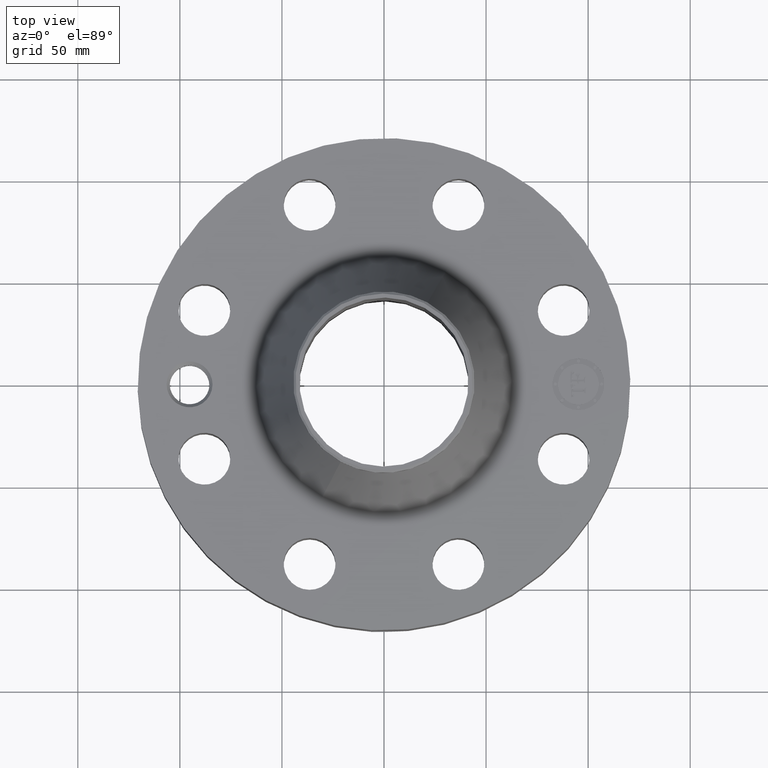
[diagram: clean part render]
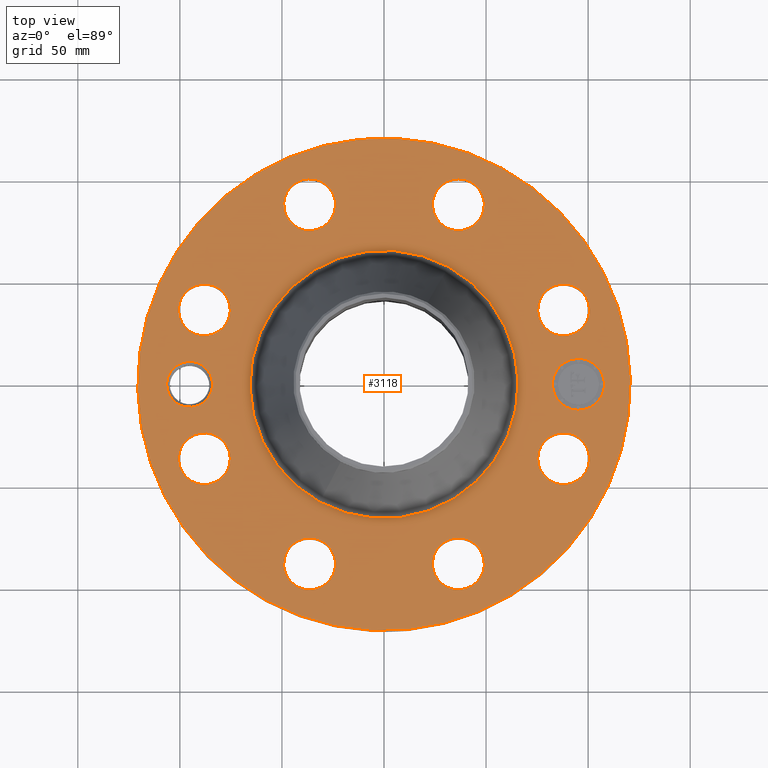
[diagram: same view with one face highlighted and labeled with its STEP entity id]
A machine part, top view. The second image highlights one B-rep face of the part: STEP entity #3118.
In plain terms, the highlighted planar face has unit normal (0, 0, -1).
Its self-contained STEP definition (entity closure, byte-faithful):
#2190=AXIS2_PLACEMENT_3D('Circle Axis2P3D',#2188,#2189,$) ;
#2216=AXIS2_PLACEMENT_3D('Circle Axis2P3D',#2214,#2215,$) ;
#2914=AXIS2_PLACEMENT_3D('Plane Axis2P3D',#2911,#2912,#2913) ;
#2918=AXIS2_PLACEMENT_3D('Circle Axis2P3D',#2916,#2917,$) ;
#2927=AXIS2_PLACEMENT_3D('Circle Axis2P3D',#2925,#2926,$) ;
#2936=AXIS2_PLACEMENT_3D('Circle Axis2P3D',#2934,#2935,$) ;
#2945=AXIS2_PLACEMENT_3D('Circle Axis2P3D',#2943,#2944,$) ;
#2954=AXIS2_PLACEMENT_3D('Circle Axis2P3D',#2952,#2953,$) ;
#2963=AXIS2_PLACEMENT_3D('Circle Axis2P3D',#2961,#2962,$) ;
#2976=AXIS2_PLACEMENT_3D('Circle Axis2P3D',#2974,#2975,$) ;
#2985=AXIS2_PLACEMENT_3D('Circle Axis2P3D',#2983,#2984,$) ;
#2994=AXIS2_PLACEMENT_3D('Circle Axis2P3D',#2992,#2993,$) ;
#3003=AXIS2_PLACEMENT_3D('Circle Axis2P3D',#3001,#3002,$) ;
#3012=AXIS2_PLACEMENT_3D('Circle Axis2P3D',#3010,#3011,$) ;
#3021=AXIS2_PLACEMENT_3D('Circle Axis2P3D',#3019,#3020,$) ;
#3030=AXIS2_PLACEMENT_3D('Circle Axis2P3D',#3028,#3029,$) ;
#3039=AXIS2_PLACEMENT_3D('Circle Axis2P3D',#3037,#3038,$) ;
#3048=AXIS2_PLACEMENT_3D('Circle Axis2P3D',#3046,#3047,$) ;
#3057=AXIS2_PLACEMENT_3D('Circle Axis2P3D',#3055,#3056,$) ;
#3066=AXIS2_PLACEMENT_3D('Circle Axis2P3D',#3064,#3065,$) ;
#3075=AXIS2_PLACEMENT_3D('Circle Axis2P3D',#3073,#3074,$) ;
#3084=AXIS2_PLACEMENT_3D('Circle Axis2P3D',#3082,#3083,$) ;
#3093=AXIS2_PLACEMENT_3D('Circle Axis2P3D',#3091,#3092,$) ;
#3102=AXIS2_PLACEMENT_3D('Circle Axis2P3D',#3100,#3101,$) ;
#3111=AXIS2_PLACEMENT_3D('Circle Axis2P3D',#3109,#3110,$) ;
#2188=CARTESIAN_POINT('Axis2P3D Location',(0.,0.,1.81200000001)) ;
#2192=CARTESIAN_POINT('Vertex',(-1.23992502813,-2.26966753984,1.81200000001)) ;
#2194=CARTESIAN_POINT('Vertex',(1.23992502813,2.26966753984,1.81200000001)) ;
#2214=CARTESIAN_POINT('Axis2P3D Location',(0.,0.,1.81200000001)) ;
#2911=CARTESIAN_POINT('Axis2P3D Location',(0.,4.75000000002,1.81200000001)) ;
#2916=CARTESIAN_POINT('Axis2P3D Location',(0.,0.,1.81200000001)) ;
#2920=CARTESIAN_POINT('Vertex',(2.27727130838,4.168517169,1.81200000001)) ;
#2922=CARTESIAN_POINT('Vertex',(-2.27727130838,-4.168517169,1.81200000001)) ;
#2925=CARTESIAN_POINT('Axis2P3D Location',(0.,0.,1.81200000001)) ;
#2934=CARTESIAN_POINT('Axis2P3D Location',(-3.75000000001,5.59482469102E-016,1.81200000001)) ;
#2938=CARTESIAN_POINT('Vertex',(-4.13859355842,0.212289628495,1.81200000001)) ;
#2940=CARTESIAN_POINT('Vertex',(-3.36140644161,-0.212289628495,1.81200000001)) ;
#2943=CARTESIAN_POINT('Axis2P3D Location',(-3.75000000001,5.59482469102E-016,1.81200000001)) ;
#2952=CARTESIAN_POINT('Axis2P3D Location',(3.46454824693,-1.43506287137,1.81200000001)) ;
#2956=CARTESIAN_POINT('Vertex',(3.02575696598,-1.19535010207,1.81200000001)) ;
#2958=CARTESIAN_POINT('Vertex',(3.90333952788,-1.67477564068,1.81200000001)) ;
#2961=CARTESIAN_POINT('Axis2P3D Location',(3.46454824693,-1.43506287137,1.81200000001)) ;
#2974=CARTESIAN_POINT('Axis2P3D Location',(1.43506287137,-3.46454824693,1.81200000001)) ;
#2978=CARTESIAN_POINT('Vertex',(1.57583263695,-3.94432306193,1.81200000001)) ;
#2980=CARTESIAN_POINT('Vertex',(1.2942931058,-2.98477343194,1.81200000001)) ;
#2983=CARTESIAN_POINT('Axis2P3D Location',(1.43506287137,-3.46454824693,1.81200000001)) ;
#2992=CARTESIAN_POINT('Axis2P3D Location',(-1.43506287137,-3.46454824693,1.81200000001)) ;
#2996=CARTESIAN_POINT('Vertex',(-1.67477564068,-3.90333952788,1.81200000001)) ;
#2998=CARTESIAN_POINT('Vertex',(-1.19535010207,-3.02575696598,1.81200000001)) ;
#3001=CARTESIAN_POINT('Axis2P3D Location',(-1.43506287137,-3.46454824693,1.81200000001)) ;
#3010=CARTESIAN_POINT('Axis2P3D Location',(-3.46454824693,-1.43506287137,1.81200000001)) ;
#3014=CARTESIAN_POINT('Vertex',(-3.94432306193,-1.57583263695,1.81200000001)) ;
#3016=CARTESIAN_POINT('Vertex',(-2.98477343194,-1.2942931058,1.81200000001)) ;
#3019=CARTESIAN_POINT('Axis2P3D Location',(-3.46454824693,-1.43506287137,1.81200000001)) ;
#3028=CARTESIAN_POINT('Axis2P3D Location',(-3.46454824693,1.43506287137,1.81200000001)) ;
#3032=CARTESIAN_POINT('Vertex',(-3.90333952788,1.67477564068,1.81200000001)) ;
#3034=CARTESIAN_POINT('Vertex',(-3.02575696598,1.19535010207,1.81200000001)) ;
#3037=CARTESIAN_POINT('Axis2P3D Location',(-3.46454824693,1.43506287137,1.81200000001)) ;
#3046=CARTESIAN_POINT('Axis2P3D Location',(-1.43506287137,3.46454824693,1.81200000001)) ;
#3050=CARTESIAN_POINT('Vertex',(-1.57583263695,3.94432306193,1.81200000001)) ;
#3052=CARTESIAN_POINT('Vertex',(-1.2942931058,2.98477343194,1.81200000001)) ;
#3055=CARTESIAN_POINT('Axis2P3D Location',(-1.43506287137,3.46454824693,1.81200000001)) ;
#3064=CARTESIAN_POINT('Axis2P3D Location',(1.43506287137,3.46454824693,1.81200000001)) ;
#3068=CARTESIAN_POINT('Vertex',(1.67477564068,3.90333952788,1.81200000001)) ;
#3070=CARTESIAN_POINT('Vertex',(1.19535010207,3.02575696598,1.81200000001)) ;
#3073=CARTESIAN_POINT('Axis2P3D Location',(1.43506287137,3.46454824693,1.81200000001)) ;
#3082=CARTESIAN_POINT('Axis2P3D Location',(3.46454824693,1.43506287137,1.81200000001)) ;
#3086=CARTESIAN_POINT('Vertex',(3.94432306193,1.57583263695,1.81200000001)) ;
#3088=CARTESIAN_POINT('Vertex',(2.98477343194,1.2942931058,1.81200000001)) ;
#3091=CARTESIAN_POINT('Axis2P3D Location',(3.46454824693,1.43506287137,1.81200000001)) ;
#3100=CARTESIAN_POINT('Axis2P3D Location',(3.75000000002,-9.51120197474E-015,1.81200000001)) ;
#3104=CARTESIAN_POINT('Vertex',(3.75000000001,0.499999995002,1.81200000001)) ;
#3106=CARTESIAN_POINT('Vertex',(3.75000000002,-0.499999995002,1.81200000001)) ;
#3109=CARTESIAN_POINT('Axis2P3D Location',(3.75000000002,-1.00706844438E-014,1.81200000001)) ;
#2189=DIRECTION('Axis2P3D Direction',(0.,0.,-0.0393700787402)) ;
#2215=DIRECTION('Axis2P3D Direction',(0.,0.,-0.0393700787402)) ;
#2912=DIRECTION('Axis2P3D Direction',(0.,0.,-0.0393700787402)) ;
#2913=DIRECTION('Axis2P3D XDirection',(0.0393700787402,0.,0.)) ;
#2917=DIRECTION('Axis2P3D Direction',(0.,0.,-0.0393700787402)) ;
#2926=DIRECTION('Axis2P3D Direction',(0.,0.,-0.0393700787402)) ;
#2935=DIRECTION('Axis2P3D Direction',(0.,0.,-0.0393700787402)) ;
#2944=DIRECTION('Axis2P3D Direction',(0.,0.,-0.0393700787402)) ;
#2953=DIRECTION('Axis2P3D Direction',(0.,0.,-0.0393700787402)) ;
#2962=DIRECTION('Axis2P3D Direction',(0.,0.,-0.0393700787402)) ;
#2975=DIRECTION('Axis2P3D Direction',(0.,0.,-0.0393700787402)) ;
#2984=DIRECTION('Axis2P3D Direction',(0.,0.,-0.0393700787402)) ;
#2993=DIRECTION('Axis2P3D Direction',(0.,0.,-0.0393700787402)) ;
#3002=DIRECTION('Axis2P3D Direction',(0.,0.,-0.0393700787402)) ;
#3011=DIRECTION('Axis2P3D Direction',(0.,0.,-0.0393700787402)) ;
#3020=DIRECTION('Axis2P3D Direction',(0.,0.,-0.0393700787402)) ;
#3029=DIRECTION('Axis2P3D Direction',(0.,0.,-0.0393700787402)) ;
#3038=DIRECTION('Axis2P3D Direction',(0.,0.,-0.0393700787402)) ;
#3047=DIRECTION('Axis2P3D Direction',(0.,0.,-0.0393700787402)) ;
#3056=DIRECTION('Axis2P3D Direction',(0.,0.,-0.0393700787402)) ;
#3065=DIRECTION('Axis2P3D Direction',(0.,0.,-0.0393700787402)) ;
#3074=DIRECTION('Axis2P3D Direction',(0.,0.,-0.0393700787402)) ;
#3083=DIRECTION('Axis2P3D Direction',(0.,0.,-0.0393700787402)) ;
#3092=DIRECTION('Axis2P3D Direction',(0.,0.,-0.0393700787402)) ;
#3101=DIRECTION('Axis2P3D Direction',(0.,0.,-0.0393700787402)) ;
#3110=DIRECTION('Axis2P3D Direction',(0.,0.,-0.0393700787402)) ;
#2931=ORIENTED_EDGE('',*,*,#2924,.F.) ;
#2932=ORIENTED_EDGE('',*,*,#2929,.F.) ;
#2949=ORIENTED_EDGE('',*,*,#2942,.T.) ;
#2950=ORIENTED_EDGE('',*,*,#2947,.T.) ;
#2967=ORIENTED_EDGE('',*,*,#2960,.T.) ;
#2968=ORIENTED_EDGE('',*,*,#2965,.T.) ;
#2971=ORIENTED_EDGE('',*,*,#2196,.T.) ;
#2972=ORIENTED_EDGE('',*,*,#2218,.T.) ;
#2989=ORIENTED_EDGE('',*,*,#2982,.T.) ;
#2990=ORIENTED_EDGE('',*,*,#2987,.T.) ;
#3007=ORIENTED_EDGE('',*,*,#3000,.T.) ;
#3008=ORIENTED_EDGE('',*,*,#3005,.T.) ;
#3025=ORIENTED_EDGE('',*,*,#3018,.T.) ;
#3026=ORIENTED_EDGE('',*,*,#3023,.T.) ;
#3043=ORIENTED_EDGE('',*,*,#3036,.T.) ;
#3044=ORIENTED_EDGE('',*,*,#3041,.T.) ;
#3061=ORIENTED_EDGE('',*,*,#3054,.T.) ;
#3062=ORIENTED_EDGE('',*,*,#3059,.T.) ;
#3079=ORIENTED_EDGE('',*,*,#3072,.T.) ;
#3080=ORIENTED_EDGE('',*,*,#3077,.T.) ;
#3097=ORIENTED_EDGE('',*,*,#3090,.T.) ;
#3098=ORIENTED_EDGE('',*,*,#3095,.T.) ;
#3115=ORIENTED_EDGE('',*,*,#3108,.T.) ;
#3116=ORIENTED_EDGE('',*,*,#3113,.T.) ;
#2951=FACE_BOUND('',#2948,.T.) ;
#2969=FACE_BOUND('',#2966,.T.) ;
#2973=FACE_BOUND('',#2970,.T.) ;
#2991=FACE_BOUND('',#2988,.T.) ;
#3009=FACE_BOUND('',#3006,.T.) ;
#3027=FACE_BOUND('',#3024,.T.) ;
#3045=FACE_BOUND('',#3042,.T.) ;
#3063=FACE_BOUND('',#3060,.T.) ;
#3081=FACE_BOUND('',#3078,.T.) ;
#3099=FACE_BOUND('',#3096,.T.) ;
#3117=FACE_BOUND('',#3114,.T.) ;
#3118=ADVANCED_FACE('PartBody',(#2933,#2951,#2969,#2973,#2991,#3009,#3027,#3045,#3063,#3081,#3099,#3117),#2915,.F.) ;
#2191=CIRCLE('generated circle',#2190,2.58627237869) ;
#2217=CIRCLE('generated circle',#2216,2.58627237869) ;
#2919=CIRCLE('generated circle',#2918,4.75000000002) ;
#2928=CIRCLE('generated circle',#2927,4.75000000002) ;
#2937=CIRCLE('generated circle',#2936,0.442800000002) ;
#2946=CIRCLE('generated circle',#2945,0.442800000002) ;
#2955=CIRCLE('generated circle',#2954,0.500000000002) ;
#2964=CIRCLE('generated circle',#2963,0.500000000002) ;
#2977=CIRCLE('generated circle',#2976,0.500000000002) ;
#2986=CIRCLE('generated circle',#2985,0.500000000002) ;
#2995=CIRCLE('generated circle',#2994,0.500000000002) ;
#3004=CIRCLE('generated circle',#3003,0.500000000002) ;
#3013=CIRCLE('generated circle',#3012,0.500000000002) ;
#3022=CIRCLE('generated circle',#3021,0.500000000002) ;
#3031=CIRCLE('generated circle',#3030,0.500000000002) ;
#3040=CIRCLE('generated circle',#3039,0.500000000002) ;
#3049=CIRCLE('generated circle',#3048,0.500000000002) ;
#3058=CIRCLE('generated circle',#3057,0.500000000002) ;
#3067=CIRCLE('generated circle',#3066,0.500000000002) ;
#3076=CIRCLE('generated circle',#3075,0.500000000002) ;
#3085=CIRCLE('generated circle',#3084,0.500000000002) ;
#3094=CIRCLE('generated circle',#3093,0.500000000002) ;
#3103=CIRCLE('generated circle',#3102,0.499999995002) ;
#3112=CIRCLE('generated circle',#3111,0.499999995002) ;
#2196=EDGE_CURVE('',#2193,#2195,#2191,.T.) ;
#2218=EDGE_CURVE('',#2195,#2193,#2217,.T.) ;
#2924=EDGE_CURVE('',#2921,#2923,#2919,.T.) ;
#2929=EDGE_CURVE('',#2923,#2921,#2928,.T.) ;
#2942=EDGE_CURVE('',#2939,#2941,#2937,.T.) ;
#2947=EDGE_CURVE('',#2941,#2939,#2946,.T.) ;
#2960=EDGE_CURVE('',#2957,#2959,#2955,.T.) ;
#2965=EDGE_CURVE('',#2959,#2957,#2964,.T.) ;
#2982=EDGE_CURVE('',#2979,#2981,#2977,.T.) ;
#2987=EDGE_CURVE('',#2981,#2979,#2986,.T.) ;
#3000=EDGE_CURVE('',#2997,#2999,#2995,.T.) ;
#3005=EDGE_CURVE('',#2999,#2997,#3004,.T.) ;
#3018=EDGE_CURVE('',#3015,#3017,#3013,.T.) ;
#3023=EDGE_CURVE('',#3017,#3015,#3022,.T.) ;
#3036=EDGE_CURVE('',#3033,#3035,#3031,.T.) ;
#3041=EDGE_CURVE('',#3035,#3033,#3040,.T.) ;
#3054=EDGE_CURVE('',#3051,#3053,#3049,.T.) ;
#3059=EDGE_CURVE('',#3053,#3051,#3058,.T.) ;
#3072=EDGE_CURVE('',#3069,#3071,#3067,.T.) ;
#3077=EDGE_CURVE('',#3071,#3069,#3076,.T.) ;
#3090=EDGE_CURVE('',#3087,#3089,#3085,.T.) ;
#3095=EDGE_CURVE('',#3089,#3087,#3094,.T.) ;
#3108=EDGE_CURVE('',#3105,#3107,#3103,.T.) ;
#3113=EDGE_CURVE('',#3107,#3105,#3112,.T.) ;
#2930=EDGE_LOOP('',(#2931,#2932)) ;
#2948=EDGE_LOOP('',(#2949,#2950)) ;
#2966=EDGE_LOOP('',(#2967,#2968)) ;
#2970=EDGE_LOOP('',(#2971,#2972)) ;
#2988=EDGE_LOOP('',(#2989,#2990)) ;
#3006=EDGE_LOOP('',(#3007,#3008)) ;
#3024=EDGE_LOOP('',(#3025,#3026)) ;
#3042=EDGE_LOOP('',(#3043,#3044)) ;
#3060=EDGE_LOOP('',(#3061,#3062)) ;
#3078=EDGE_LOOP('',(#3079,#3080)) ;
#3096=EDGE_LOOP('',(#3097,#3098)) ;
#3114=EDGE_LOOP('',(#3115,#3116)) ;
#2933=FACE_OUTER_BOUND('',#2930,.T.) ;
#2915=PLANE('',#2914) ;
#2193=VERTEX_POINT('',#2192) ;
#2195=VERTEX_POINT('',#2194) ;
#2921=VERTEX_POINT('',#2920) ;
#2923=VERTEX_POINT('',#2922) ;
#2939=VERTEX_POINT('',#2938) ;
#2941=VERTEX_POINT('',#2940) ;
#2957=VERTEX_POINT('',#2956) ;
#2959=VERTEX_POINT('',#2958) ;
#2979=VERTEX_POINT('',#2978) ;
#2981=VERTEX_POINT('',#2980) ;
#2997=VERTEX_POINT('',#2996) ;
#2999=VERTEX_POINT('',#2998) ;
#3015=VERTEX_POINT('',#3014) ;
#3017=VERTEX_POINT('',#3016) ;
#3033=VERTEX_POINT('',#3032) ;
#3035=VERTEX_POINT('',#3034) ;
#3051=VERTEX_POINT('',#3050) ;
#3053=VERTEX_POINT('',#3052) ;
#3069=VERTEX_POINT('',#3068) ;
#3071=VERTEX_POINT('',#3070) ;
#3087=VERTEX_POINT('',#3086) ;
#3089=VERTEX_POINT('',#3088) ;
#3105=VERTEX_POINT('',#3104) ;
#3107=VERTEX_POINT('',#3106) ;